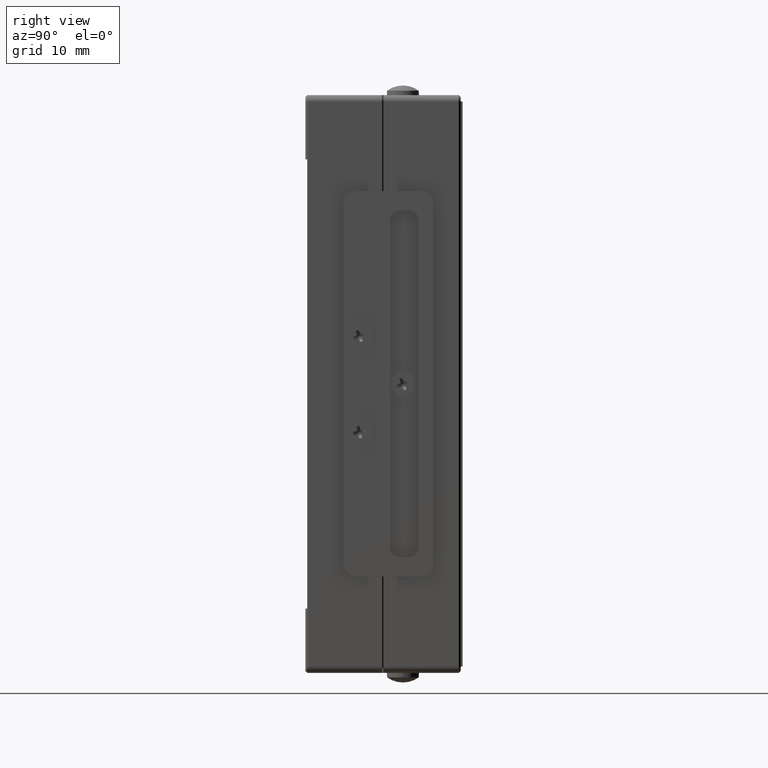
[diagram: clean part render]
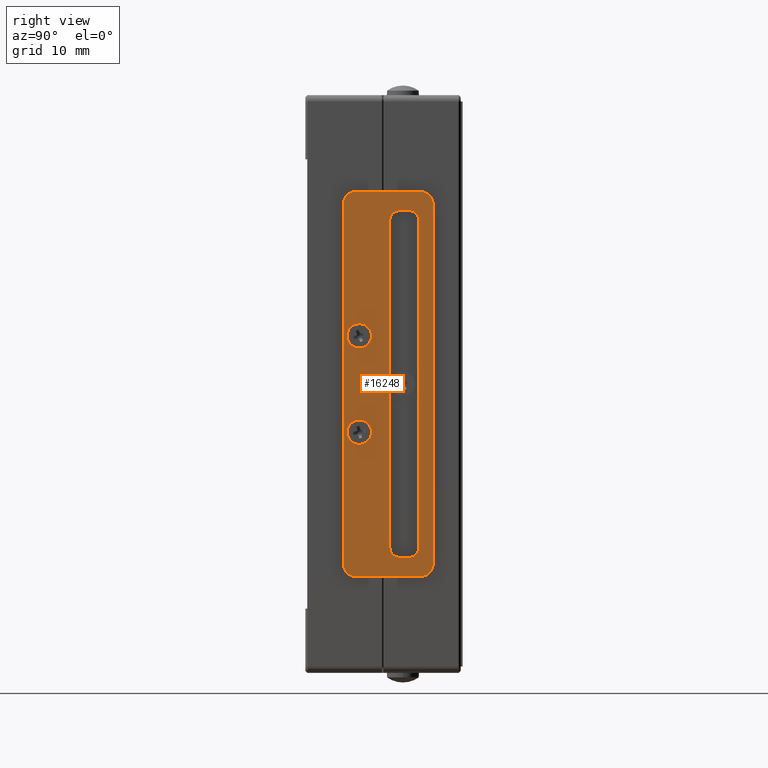
[diagram: same view with one face highlighted and labeled with its STEP entity id]
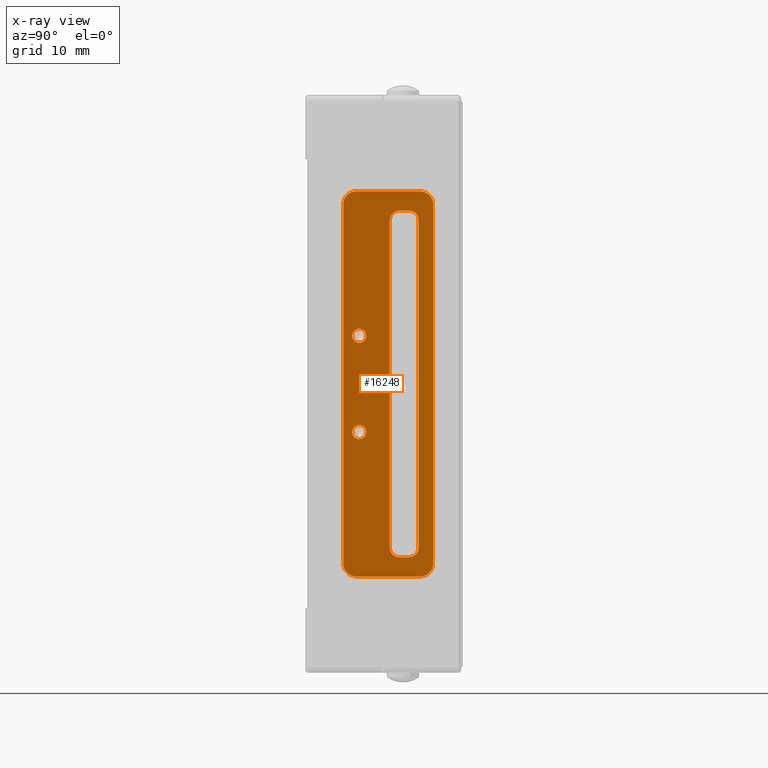
[diagram: x-ray of the same camera — body ghosted, the highlighted face saturated]
A machine part, right view. The second image highlights one B-rep face of the part: STEP entity #16248.
The next image is the same camera in x-ray: the body ghosted, the highlighted face saturated — about 0% of this face is hidden behind the body in this view.
In plain terms, the highlighted planar face has unit normal (1, 0, 0).
Its self-contained STEP definition (entity closure, byte-faithful):
#38 = AXIS2_PLACEMENT_3D ( 'NONE', #2311, #6822, #81 ) ;
#81 = DIRECTION ( 'NONE',  ( 1.000000000000000000, 0.000000000000000000, 0.000000000000000000 ) ) ;
#281 = CARTESIAN_POINT ( 'NONE',  ( -15.07627118644064979, 7.487288135593220595, 0.000000000000000000 ) ) ;
#282 = EDGE_CURVE ( 'NONE', #7062, #12236, #9894, .T. ) ;
#460 = VERTEX_POINT ( 'NONE', #18696 ) ;
#530 = EDGE_CURVE ( 'NONE', #11804, #3511, #11687, .T. ) ;
#563 = VECTOR ( 'NONE', #17894, 1000.000000000000000 ) ;
#570 = CIRCLE ( 'NONE', #4162, 1.500000000000001332 ) ;
#794 = DIRECTION ( 'NONE',  ( 1.000000000000000000, 0.000000000000000000, 0.000000000000000000 ) ) ;
#1040 = VECTOR ( 'NONE', #26024, 1000.000000000000000 ) ;
#1177 = AXIS2_PLACEMENT_3D ( 'NONE', #24859, #14321, #794 ) ;
#1308 = EDGE_CURVE ( 'NONE', #24435, #18758, #15771, .T. ) ;
#1473 = VERTEX_POINT ( 'NONE', #22172 ) ;
#1511 = AXIS2_PLACEMENT_3D ( 'NONE', #2105, #8600, #17173 ) ;
#2040 = DIRECTION ( 'NONE',  ( 1.000000000000000000, 0.000000000000000000, 0.000000000000000000 ) ) ;
#2087 = VECTOR ( 'NONE', #18366, 1000.000000000000000 ) ;
#2089 = EDGE_LOOP ( 'NONE', ( #27405, #12148, #5551, #17362, #7496, #11159, #10073, #22680 ) ) ;
#2105 = CARTESIAN_POINT ( 'NONE',  ( -17.57627118644064979, 12.23728813559321971, 0.000000000000000000 ) ) ;
#2311 = CARTESIAN_POINT ( 'NONE',  ( 2.923728813559329787, 2.737288135593215266, 0.000000000000000000 ) ) ;
#2395 = CARTESIAN_POINT ( 'NONE',  ( 35.92372881355935021, 11.98728813559322148, 0.000000000000000000 ) ) ;
#3260 = ORIENTED_EDGE ( 'NONE', *, *, #282, .F. ) ;
#3511 = VERTEX_POINT ( 'NONE', #21705 ) ;
#3935 = CIRCLE ( 'NONE', #27309, 2.000000000000001776 ) ;
#4003 = VERTEX_POINT ( 'NONE', #19538 ) ;
#4030 = VECTOR ( 'NONE', #5324, 1000.000000000000000 ) ;
#4162 = AXIS2_PLACEMENT_3D ( 'NONE', #5644, #12136, #20698 ) ;
#4735 = DIRECTION ( 'NONE',  ( 0.000000000000000000, 0.000000000000000000, 1.000000000000000000 ) ) ;
#4794 = ORIENTED_EDGE ( 'NONE', *, *, #17848, .T. ) ;
#5035 = AXIS2_PLACEMENT_3D ( 'NONE', #16806, #25396, #14721 ) ;
#5128 = EDGE_CURVE ( 'NONE', #460, #23151, #15623, .T. ) ;
#5129 = VERTEX_POINT ( 'NONE', #23938 ) ;
#5324 = DIRECTION ( 'NONE',  ( -1.000000000000000000, 0.000000000000000000, 0.000000000000000000 ) ) ;
#5424 = LINE ( 'NONE', #20078, #2087 ) ;
#5551 = ORIENTED_EDGE ( 'NONE', *, *, #18522, .F. ) ;
#5644 = CARTESIAN_POINT ( 'NONE',  ( 35.92372881355935021, 8.987288135593219707, 0.000000000000000000 ) ) ;
#5750 = CARTESIAN_POINT ( 'NONE',  ( 40.42372881355935021, 2.237288135593215266, 0.000000000000000000 ) ) ;
#5976 = DIRECTION ( 'NONE',  ( -1.000000000000000000, 0.000000000000000000, 0.000000000000000000 ) ) ;
#6100 = CARTESIAN_POINT ( 'NONE',  ( 17.92372881355935021, 2.737288135593215266, 0.000000000000000000 ) ) ;
#6347 = EDGE_CURVE ( 'NONE', #23151, #27342, #7290, .T. ) ;
#6519 = ORIENTED_EDGE ( 'NONE', *, *, #530, .T. ) ;
#6630 = EDGE_CURVE ( 'NONE', #27342, #4003, #26628, .T. ) ;
#6726 = CARTESIAN_POINT ( 'NONE',  ( 37.42372881355935021, 10.48728813559319839, 0.000000000000000000 ) ) ;
#6822 = DIRECTION ( 'NONE',  ( 0.000000000000000000, 0.000000000000000000, 1.000000000000000000 ) ) ;
#6835 = ORIENTED_EDGE ( 'NONE', *, *, #18465, .T. ) ;
#7062 = VERTEX_POINT ( 'NONE', #14474 ) ;
#7290 = CIRCLE ( 'NONE', #5035, 1.500000000000001332 ) ;
#7343 = CARTESIAN_POINT ( 'NONE',  ( 35.92372881355935021, 11.98728813559322148, 0.000000000000000000 ) ) ;
#7496 = ORIENTED_EDGE ( 'NONE', *, *, #13366, .F. ) ;
#7707 = EDGE_CURVE ( 'NONE', #4003, #19653, #21749, .T. ) ;
#7751 = AXIS2_PLACEMENT_3D ( 'NONE', #19079, #12780, #2040 ) ;
#7973 = DIRECTION ( 'NONE',  ( 1.000000000000000000, 0.000000000000000000, 0.000000000000000000 ) ) ;
#8284 = ORIENTED_EDGE ( 'NONE', *, *, #19876, .T. ) ;
#8423 = CARTESIAN_POINT ( 'NONE',  ( 38.42372881355935021, 0.2372881355932159875, 0.000000000000000000 ) ) ;
#8479 = EDGE_LOOP ( 'NONE', ( #24100, #22137 ) ) ;
#8591 = VERTEX_POINT ( 'NONE', #8423 ) ;
#8600 = DIRECTION ( 'NONE',  ( 0.000000000000000000, 0.000000000000000000, 1.000000000000000000 ) ) ;
#8740 = AXIS2_PLACEMENT_3D ( 'NONE', #21354, #12370, #7973 ) ;
#8850 = EDGE_LOOP ( 'NONE', ( #6519, #23656, #4794, #8284, #24815, #13784, #6835, #18755 ) ) ;
#8979 = CARTESIAN_POINT ( 'NONE',  ( -19.57627118644064979, 14.23728813559321971, 0.000000000000000000 ) ) ;
#9016 = CARTESIAN_POINT ( 'NONE',  ( 4.023728813559335649, 2.737288135593215266, 0.000000000000000000 ) ) ;
#9819 = EDGE_CURVE ( 'NONE', #19653, #15010, #20806, .T. ) ;
#9875 = CARTESIAN_POINT ( 'NONE',  ( 40.42372881355935021, 0.2372881355932159875, 0.000000000000000000 ) ) ;
#9894 = CIRCLE ( 'NONE', #12154, 1.100000000000000311 ) ;
#10064 = CARTESIAN_POINT ( 'NONE',  ( -17.57627118644064979, 2.237288135593215266, 0.000000000000000000 ) ) ;
#10073 = ORIENTED_EDGE ( 'NONE', *, *, #7707, .F. ) ;
#10244 = FACE_BOUND ( 'NONE', #10321, .T. ) ;
#10321 = EDGE_LOOP ( 'NONE', ( #13405, #3260 ) ) ;
#10788 = CARTESIAN_POINT ( 'NONE',  ( -16.57627118644064979, 8.987288135593219707, 0.000000000000000000 ) ) ;
#10850 = VECTOR ( 'NONE', #15354, 1000.000000000000000 ) ;
#10964 = LINE ( 'NONE', #8979, #17814 ) ;
#11159 = ORIENTED_EDGE ( 'NONE', *, *, #9819, .F. ) ;
#11687 = LINE ( 'NONE', #18128, #4030 ) ;
#11804 = VERTEX_POINT ( 'NONE', #19905 ) ;
#11883 = CIRCLE ( 'NONE', #12352, 1.499999999999999556 ) ;
#12136 = DIRECTION ( 'NONE',  ( 0.000000000000000000, 0.000000000000000000, 1.000000000000000000 ) ) ;
#12148 = ORIENTED_EDGE ( 'NONE', *, *, #5128, .F. ) ;
#12154 = AXIS2_PLACEMENT_3D ( 'NONE', #6100, #19038, #23283 ) ;
#12236 = VERTEX_POINT ( 'NONE', #26206 ) ;
#12352 = AXIS2_PLACEMENT_3D ( 'NONE', #20492, #22756, #16262 ) ;
#12370 = DIRECTION ( 'NONE',  ( 0.000000000000000000, 0.000000000000000000, 1.000000000000000000 ) ) ;
#12490 = EDGE_CURVE ( 'NONE', #17057, #11804, #3935, .T. ) ;
#12780 = DIRECTION ( 'NONE',  ( 0.000000000000000000, 0.000000000000000000, 1.000000000000000000 ) ) ;
#12789 = FACE_BOUND ( 'NONE', #2089, .T. ) ;
#13360 = DIRECTION ( 'NONE',  ( 1.000000000000000000, 0.000000000000000000, 0.000000000000000000 ) ) ;
#13366 = EDGE_CURVE ( 'NONE', #15010, #5129, #11883, .T. ) ;
#13405 = ORIENTED_EDGE ( 'NONE', *, *, #17905, .F. ) ;
#13784 = ORIENTED_EDGE ( 'NONE', *, *, #18229, .T. ) ;
#13918 = EDGE_CURVE ( 'NONE', #3511, #1473, #26667, .T. ) ;
#13972 = DIRECTION ( 'NONE',  ( 0.000000000000000000, 0.000000000000000000, 1.000000000000000000 ) ) ;
#14092 = EDGE_CURVE ( 'NONE', #5129, #21919, #19552, .T. ) ;
#14321 = DIRECTION ( 'NONE',  ( 0.000000000000000000, 0.000000000000000000, 1.000000000000000000 ) ) ;
#14474 = CARTESIAN_POINT ( 'NONE',  ( 16.82372881355935235, 2.737288135593215266, 0.000000000000000000 ) ) ;
#14694 = CARTESIAN_POINT ( 'NONE',  ( -19.57627118644064979, 2.237288135593215266, 0.000000000000000000 ) ) ;
#14721 = DIRECTION ( 'NONE',  ( 1.000000000000000000, 0.000000000000000000, 0.000000000000000000 ) ) ;
#14752 = PLANE ( 'NONE',  #8740 ) ;
#15010 = VERTEX_POINT ( 'NONE', #10788 ) ;
#15354 = DIRECTION ( 'NONE',  ( 0.000000000000000000, 1.000000000000000000, 0.000000000000000000 ) ) ;
#15456 = DIRECTION ( 'NONE',  ( 2.478176394252580155E-16, -1.000000000000000000, 0.000000000000000000 ) ) ;
#15623 = LINE ( 'NONE', #26313, #10850 ) ;
#15771 = CIRCLE ( 'NONE', #38, 1.100000000000000311 ) ;
#15851 = VERTEX_POINT ( 'NONE', #19800 ) ;
#15997 = VECTOR ( 'NONE', #16583, 1000.000000000000000 ) ;
#16073 = CARTESIAN_POINT ( 'NONE',  ( 38.42372881355935021, 12.23728813559321971, 0.000000000000000000 ) ) ;
#16248 = ADVANCED_FACE ( 'NONE', ( #16703, #12789, #10244, #21063 ), #14752, .T. ) ;
#16262 = DIRECTION ( 'NONE',  ( 1.000000000000000000, 0.000000000000000000, 0.000000000000000000 ) ) ;
#16583 = DIRECTION ( 'NONE',  ( 0.000000000000000000, -1.000000000000000000, 0.000000000000000000 ) ) ;
#16670 = CARTESIAN_POINT ( 'NONE',  ( -15.07627118644064979, 10.48728813559321971, 0.000000000000000000 ) ) ;
#16703 = FACE_OUTER_BOUND ( 'NONE', #8850, .T. ) ;
#16806 = CARTESIAN_POINT ( 'NONE',  ( 35.92372881355935021, 10.48728813559321971, 0.000000000000000000 ) ) ;
#17057 = VERTEX_POINT ( 'NONE', #18876 ) ;
#17062 = VERTEX_POINT ( 'NONE', #14694 ) ;
#17173 = DIRECTION ( 'NONE',  ( 1.000000000000000000, 0.000000000000000000, 0.000000000000000000 ) ) ;
#17362 = ORIENTED_EDGE ( 'NONE', *, *, #14092, .F. ) ;
#17814 = VECTOR ( 'NONE', #15456, 1000.000000000000000 ) ;
#17848 = EDGE_CURVE ( 'NONE', #1473, #17062, #10964, .T. ) ;
#17894 = DIRECTION ( 'NONE',  ( -1.000000000000000000, -1.360567432138671835E-16, 0.000000000000000000 ) ) ;
#17905 = EDGE_CURVE ( 'NONE', #12236, #7062, #21879, .T. ) ;
#18059 = EDGE_CURVE ( 'NONE', #15851, #8591, #5424, .T. ) ;
#18062 = EDGE_CURVE ( 'NONE', #18758, #24435, #19609, .T. ) ;
#18128 = CARTESIAN_POINT ( 'NONE',  ( 40.42372881355935021, 14.23728813559321971, 0.000000000000000000 ) ) ;
#18229 = EDGE_CURVE ( 'NONE', #8591, #21882, #23948, .T. ) ;
#18366 = DIRECTION ( 'NONE',  ( 1.000000000000000000, 0.000000000000000000, 0.000000000000000000 ) ) ;
#18465 = EDGE_CURVE ( 'NONE', #21882, #17057, #25201, .T. ) ;
#18522 = EDGE_CURVE ( 'NONE', #21919, #460, #570, .T. ) ;
#18692 = CARTESIAN_POINT ( 'NONE',  ( -16.57627118644064979, 10.48728813559319839, 0.000000000000000000 ) ) ;
#18696 = CARTESIAN_POINT ( 'NONE',  ( 37.42372881355935021, 8.987288135593230365, 0.000000000000000000 ) ) ;
#18732 = DIRECTION ( 'NONE',  ( 0.000000000000000000, 1.000000000000000000, 0.000000000000000000 ) ) ;
#18755 = ORIENTED_EDGE ( 'NONE', *, *, #12490, .T. ) ;
#18758 = VERTEX_POINT ( 'NONE', #9016 ) ;
#18876 = CARTESIAN_POINT ( 'NONE',  ( 40.42372881355935021, 12.23728813559321971, 0.000000000000000000 ) ) ;
#19038 = DIRECTION ( 'NONE',  ( 0.000000000000000000, 0.000000000000000000, 1.000000000000000000 ) ) ;
#19079 = CARTESIAN_POINT ( 'NONE',  ( 38.42372881355935021, 2.237288135593215266, 0.000000000000000000 ) ) ;
#19386 = CARTESIAN_POINT ( 'NONE',  ( 35.92372881355935021, 7.487288135593209937, 0.000000000000000000 ) ) ;
#19538 = CARTESIAN_POINT ( 'NONE',  ( -15.07627118644064979, 11.98728813559320017, 0.000000000000000000 ) ) ;
#19552 = LINE ( 'NONE', #281, #1040 ) ;
#19609 = CIRCLE ( 'NONE', #1177, 1.100000000000000311 ) ;
#19653 = VERTEX_POINT ( 'NONE', #21764 ) ;
#19800 = CARTESIAN_POINT ( 'NONE',  ( -17.57627118644064979, 0.2372881355932159875, 0.000000000000000000 ) ) ;
#19876 = EDGE_CURVE ( 'NONE', #17062, #15851, #24705, .T. ) ;
#19905 = CARTESIAN_POINT ( 'NONE',  ( 38.42372881355935021, 14.23728813559321971, 0.000000000000000000 ) ) ;
#20078 = CARTESIAN_POINT ( 'NONE',  ( -19.57627118644064979, 0.2372881355932159875, 0.000000000000000000 ) ) ;
#20195 = AXIS2_PLACEMENT_3D ( 'NONE', #10064, #23005, #23433 ) ;
#20492 = CARTESIAN_POINT ( 'NONE',  ( -15.07627118644064979, 8.987288135593219707, 0.000000000000000000 ) ) ;
#20698 = DIRECTION ( 'NONE',  ( 1.000000000000000000, 0.000000000000000000, 0.000000000000000000 ) ) ;
#20806 = LINE ( 'NONE', #18692, #15997 ) ;
#21063 = FACE_BOUND ( 'NONE', #8479, .T. ) ;
#21354 = CARTESIAN_POINT ( 'NONE',  ( 0.000000000000000000, 0.000000000000000000, 0.000000000000000000 ) ) ;
#21667 = CARTESIAN_POINT ( 'NONE',  ( 1.823728813559329920, 2.737288135593215266, 0.000000000000000000 ) ) ;
#21705 = CARTESIAN_POINT ( 'NONE',  ( -17.57627118644064979, 14.23728813559321971, 0.000000000000000000 ) ) ;
#21749 = CIRCLE ( 'NONE', #23570, 1.500000000000001332 ) ;
#21764 = CARTESIAN_POINT ( 'NONE',  ( -16.57627118644064979, 10.48728813559319839, 0.000000000000000000 ) ) ;
#21792 = CARTESIAN_POINT ( 'NONE',  ( 17.92372881355935021, 2.737288135593215266, 0.000000000000000000 ) ) ;
#21879 = CIRCLE ( 'NONE', #24560, 1.100000000000000311 ) ;
#21882 = VERTEX_POINT ( 'NONE', #5750 ) ;
#21919 = VERTEX_POINT ( 'NONE', #19386 ) ;
#22137 = ORIENTED_EDGE ( 'NONE', *, *, #1308, .F. ) ;
#22172 = CARTESIAN_POINT ( 'NONE',  ( -19.57627118644064979, 12.23728813559321971, 0.000000000000000000 ) ) ;
#22557 = DIRECTION ( 'NONE',  ( 1.000000000000000000, 0.000000000000000000, 0.000000000000000000 ) ) ;
#22680 = ORIENTED_EDGE ( 'NONE', *, *, #6630, .F. ) ;
#22756 = DIRECTION ( 'NONE',  ( 0.000000000000000000, 0.000000000000000000, 1.000000000000000000 ) ) ;
#23005 = DIRECTION ( 'NONE',  ( 0.000000000000000000, 0.000000000000000000, 1.000000000000000000 ) ) ;
#23151 = VERTEX_POINT ( 'NONE', #6726 ) ;
#23283 = DIRECTION ( 'NONE',  ( 1.000000000000000000, 0.000000000000000000, 0.000000000000000000 ) ) ;
#23433 = DIRECTION ( 'NONE',  ( 1.000000000000000000, 0.000000000000000000, 0.000000000000000000 ) ) ;
#23570 = AXIS2_PLACEMENT_3D ( 'NONE', #16670, #25256, #5976 ) ;
#23656 = ORIENTED_EDGE ( 'NONE', *, *, #13918, .T. ) ;
#23938 = CARTESIAN_POINT ( 'NONE',  ( -15.07627118644064979, 7.487288135593220595, 0.000000000000000000 ) ) ;
#23948 = CIRCLE ( 'NONE', #7751, 2.000000000000001776 ) ;
#24100 = ORIENTED_EDGE ( 'NONE', *, *, #18062, .F. ) ;
#24435 = VERTEX_POINT ( 'NONE', #21667 ) ;
#24560 = AXIS2_PLACEMENT_3D ( 'NONE', #21792, #4735, #13360 ) ;
#24705 = CIRCLE ( 'NONE', #20195, 2.000000000000000000 ) ;
#24815 = ORIENTED_EDGE ( 'NONE', *, *, #18059, .T. ) ;
#24859 = CARTESIAN_POINT ( 'NONE',  ( 2.923728813559329787, 2.737288135593215266, 0.000000000000000000 ) ) ;
#25201 = LINE ( 'NONE', #9875, #26178 ) ;
#25256 = DIRECTION ( 'NONE',  ( 0.000000000000000000, 0.000000000000000000, 1.000000000000000000 ) ) ;
#25396 = DIRECTION ( 'NONE',  ( 0.000000000000000000, 0.000000000000000000, 1.000000000000000000 ) ) ;
#26024 = DIRECTION ( 'NONE',  ( 1.000000000000000000, 0.000000000000000000, 0.000000000000000000 ) ) ;
#26178 = VECTOR ( 'NONE', #18732, 1000.000000000000000 ) ;
#26206 = CARTESIAN_POINT ( 'NONE',  ( 19.02372881355935164, 2.737288135593215266, 0.000000000000000000 ) ) ;
#26313 = CARTESIAN_POINT ( 'NONE',  ( 37.42372881355935021, 8.987288135593230365, 0.000000000000000000 ) ) ;
#26628 = LINE ( 'NONE', #7343, #563 ) ;
#26667 = CIRCLE ( 'NONE', #1511, 2.000000000000000000 ) ;
#27309 = AXIS2_PLACEMENT_3D ( 'NONE', #16073, #13972, #22557 ) ;
#27342 = VERTEX_POINT ( 'NONE', #2395 ) ;
#27405 = ORIENTED_EDGE ( 'NONE', *, *, #6347, .F. ) ;